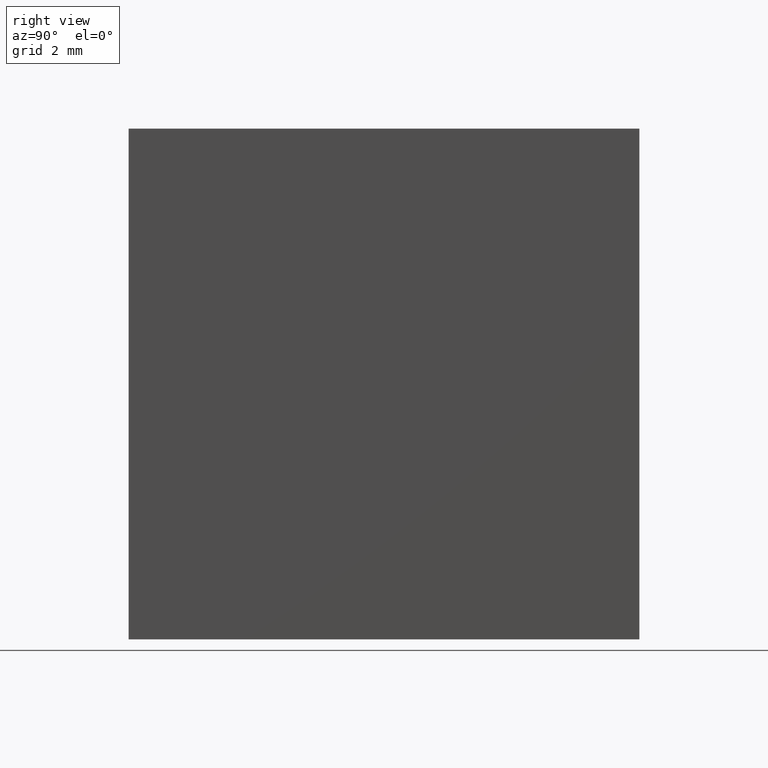
[diagram: clean part render]
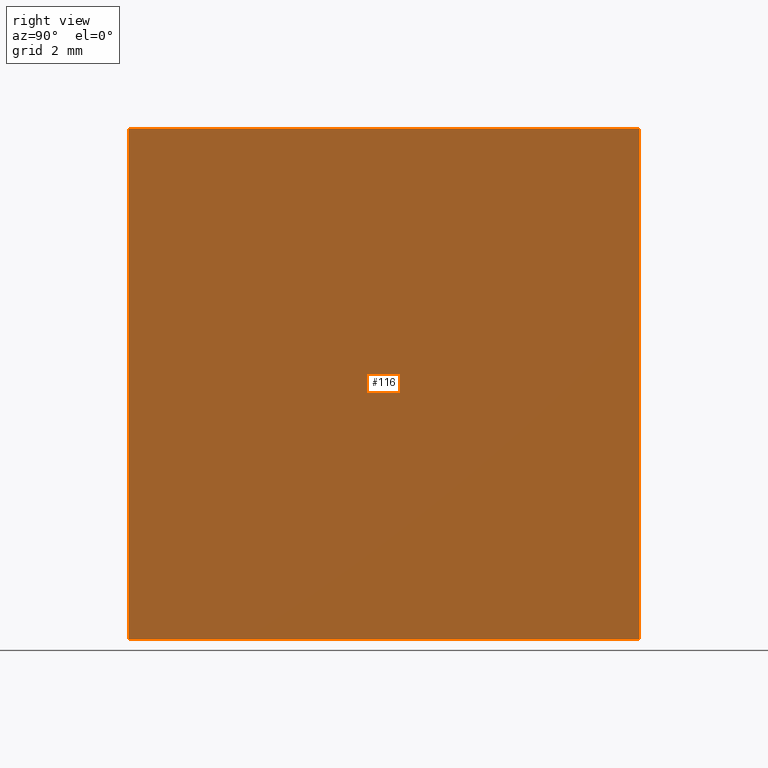
[diagram: same view with one face highlighted and labeled with its STEP entity id]
A machine part, right view. The second image highlights one B-rep face of the part: STEP entity #116.
In plain terms, the highlighted planar face has unit normal (-1, 0, 0).
Its self-contained STEP definition (entity closure, byte-faithful):
#1 = EDGE_CURVE ( 'NONE', #37, #246, #183, .T. ) ;
#13 = EDGE_LOOP ( 'NONE', ( #121, #253, #58, #181 ) ) ;
#27 = PLANE ( 'NONE',  #250 ) ;
#37 = VERTEX_POINT ( 'NONE', #48 ) ;
#43 = VECTOR ( 'NONE', #52, 1000.000000000000000 ) ;
#48 = CARTESIAN_POINT ( 'NONE',  ( -49.43755826242143314, 5.000000000000000888, 10.00000000000000000 ) ) ;
#52 = DIRECTION ( 'NONE',  ( -0.000000000000000000, 1.000000000000000000, -0.000000000000000000 ) ) ;
#58 = ORIENTED_EDGE ( 'NONE', *, *, #257, .F. ) ;
#60 = LINE ( 'NONE', #167, #131 ) ;
#64 = CARTESIAN_POINT ( 'NONE',  ( -49.43755826242143314, -5.000000000000000888, 0.000000000000000000 ) ) ;
#69 = CARTESIAN_POINT ( 'NONE',  ( -49.43755826242143314, 5.000000000000000888, 10.00000000000000000 ) ) ;
#94 = VERTEX_POINT ( 'NONE', #64 ) ;
#96 = DIRECTION ( 'NONE',  ( -0.000000000000000000, -0.000000000000000000, -1.000000000000000000 ) ) ;
#97 = DIRECTION ( 'NONE',  ( -0.000000000000000000, 1.000000000000000000, -0.000000000000000000 ) ) ;
#100 = EDGE_CURVE ( 'NONE', #94, #246, #112, .T. ) ;
#112 = LINE ( 'NONE', #234, #43 ) ;
#116 = ADVANCED_FACE ( 'NONE', ( #261 ), #27, .F. ) ;
#121 = ORIENTED_EDGE ( 'NONE', *, *, #100, .T. ) ;
#128 = CARTESIAN_POINT ( 'NONE',  ( -49.43755826242143314, 5.000000000000000888, 0.000000000000000000 ) ) ;
#131 = VECTOR ( 'NONE', #97, 1000.000000000000000 ) ;
#147 = VECTOR ( 'NONE', #269, 1000.000000000000000 ) ;
#149 = LINE ( 'NONE', #171, #147 ) ;
#155 = DIRECTION ( 'NONE',  ( 0.000000000000000000, 0.000000000000000000, 1.000000000000000000 ) ) ;
#167 = CARTESIAN_POINT ( 'NONE',  ( -49.43755826242143314, 5.000000000000000888, 10.00000000000000000 ) ) ;
#171 = CARTESIAN_POINT ( 'NONE',  ( -49.43755826242143314, -5.000000000000000888, 10.00000000000000000 ) ) ;
#181 = ORIENTED_EDGE ( 'NONE', *, *, #252, .T. ) ;
#183 = LINE ( 'NONE', #241, #190 ) ;
#190 = VECTOR ( 'NONE', #96, 1000.000000000000000 ) ;
#202 = DIRECTION ( 'NONE',  ( -1.000000000000000000, 0.000000000000000000, 0.000000000000000000 ) ) ;
#229 = CARTESIAN_POINT ( 'NONE',  ( -49.43755826242143314, -5.000000000000000888, 10.00000000000000000 ) ) ;
#234 = CARTESIAN_POINT ( 'NONE',  ( -49.43755826242143314, 5.000000000000000888, 0.000000000000000000 ) ) ;
#241 = CARTESIAN_POINT ( 'NONE',  ( -49.43755826242143314, 5.000000000000000888, 10.00000000000000000 ) ) ;
#246 = VERTEX_POINT ( 'NONE', #128 ) ;
#250 = AXIS2_PLACEMENT_3D ( 'NONE', #69, #202, #155 ) ;
#252 = EDGE_CURVE ( 'NONE', #267, #94, #149, .T. ) ;
#253 = ORIENTED_EDGE ( 'NONE', *, *, #1, .F. ) ;
#257 = EDGE_CURVE ( 'NONE', #267, #37, #60, .T. ) ;
#261 = FACE_OUTER_BOUND ( 'NONE', #13, .T. ) ;
#267 = VERTEX_POINT ( 'NONE', #229 ) ;
#269 = DIRECTION ( 'NONE',  ( -0.000000000000000000, -0.000000000000000000, -1.000000000000000000 ) ) ;